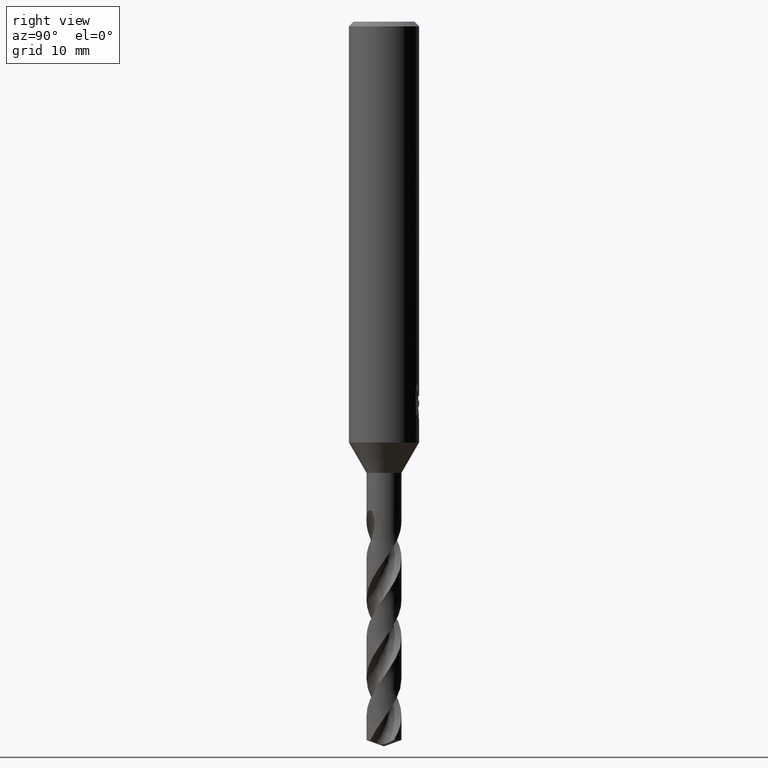
[diagram: clean part render]
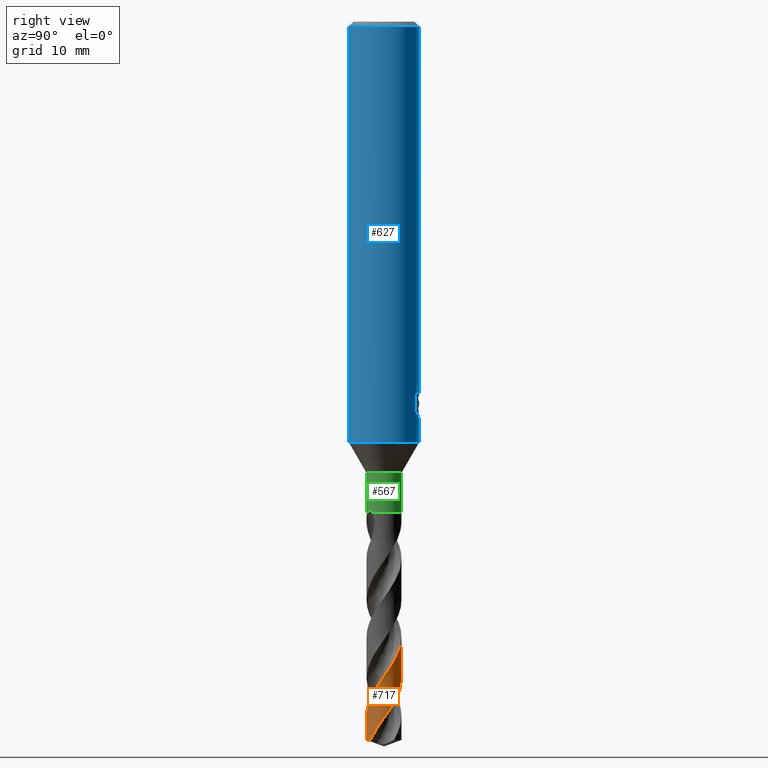
[diagram: same view with three faces highlighted in distinct colors, each labeled with its STEP entity id]
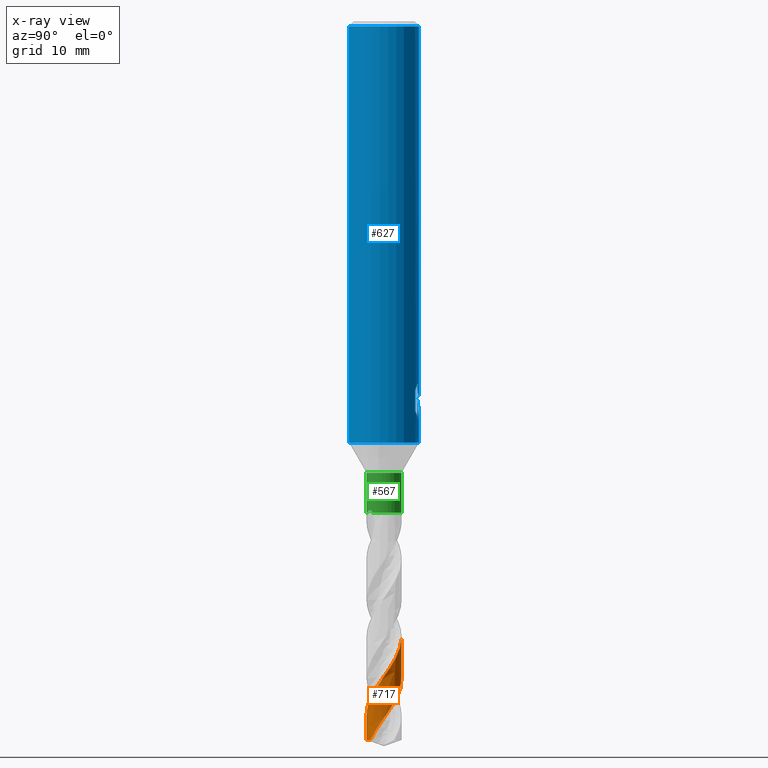
[diagram: x-ray of the same camera — body ghosted, the three highlighted faces saturated]
A machine part, right view with three faces highlighted in distinct colors.
The next image is the same camera in x-ray (body ghosted, the three faces saturated) — at least one of them is partly hidden behind the body in this view.
Their STEP definitions:

[orange] entity #717 — the highlighted conical surface has half-angle 0 deg.
#289=VERTEX_POINT('',#798);
#389=VERTEX_POINT('',#905);
#405=VERTEX_POINT('',#921);
#425=VERTEX_POINT('',#943);
#483=EDGE_CURVE('',#699,#289,#1010,.T.);
#557=EDGE_CURVE('',#425,#405,#1092,.T.);
#593=EDGE_CURVE('',#425,#389,#1130,.T.);
#595=EDGE_CURVE('',#699,#405,#1132,.T.);
#697=EDGE_CURVE('',#389,#289,#1244,.T.);
#699=VERTEX_POINT('',#1246);
#717=ADVANCED_FACE('',(#1265),#1266,.T.);
#798=CARTESIAN_POINT('',(-9.09574334832199E-012,-1.4999893762886,-59.3873030887682));
#905=CARTESIAN_POINT('',(1.83696954961922E-016,-1.5,-61.4540446486007));
#921=CARTESIAN_POINT('',(8.52531076527414E-012,1.49997300106852,-56.2016604643893));
#943=CARTESIAN_POINT('',(0.955970928159851,-1.15590639089556,-61.4540446486007));
#1010=B_SPLINE_CURVE_WITH_KNOTS('',3,(#3201,#3202,#3203,#3204,#3205,#3206,#3207,#3208,#3209,#3210,#3211,#3212,#3213,#3214,#3215,#3216,#3217,#3218,#3219,#3220,#3221,#3222,#3223,#3224,#3225,#3226,#3227,#3228,#3229,#3230,#3231,#3232,#3233,#3234,#3235,#3236,#3237,#3238,#3239,#3240,#3241,#3242,#3243,#3244,#3245,#3246,#3247,#3248,#3249,#3250,#3251,#3252,#3253,#3254,#3255,#3256,#3257,#3258,#3259,#3260,#3261,#3262,#3263,#3264,#3265,#3266,#3267,#3268,#3269,#3270,#3271,#3272,#3273,#3274,#3275,#3276,#3277,#3278,#3279,#3280,#3281,#3282,#3283,#3284,#3285,#3286,#3287,#3288,#3289,#3290,#3291,#3292,#3293,#3294,#3295,#3296,#3297,#3298,#3299,#3300),.UNSPECIFIED.,.F.,.F.,(4,2,2,2,2,2,2,2,2,2,2,2,2,2,2,2,2,2,2,2,2,2,2,2,2,2,2,2,2,2,2,2,2,2,2,2,2,2,2,2,2,2,2,2,2,2,2,2,2,4),(0.0,0.0494770349024312,0.0874460724039117,0.101018923007453,0.118882330418932,0.263554123507688,0.312997574476619,0.354081651349707,0.423768533427,0.508155185945295,0.672210713903487,0.699854159062458,0.818234451711137,0.894586122439807,0.967333661050095,1.00500013145378,1.11817492508677,1.34546461604303,1.45576750765601,1.79219487180401,2.69820480304552,2.83786086304867,3.60133049767861,4.49823561342111,5.12886428074419,5.78024308772815,6.76779369941567,6.9704344308379,7.66156994148285,8.56895041321238,9.61872501024354,9.71121369697719,10.3869950290038,10.8402021433472,11.2723035119934,12.123545721467,12.6301595036068,13.5289355353771,14.0091781563316,14.9125320830876,15.3859589385816,16.2893795474418,16.7628541366356,17.66703717944,18.1369888293891,19.0418781370671,19.5200614635924,20.370272897072,20.8543308610321,21.3435466858628),.UNSPECIFIED.);
#1092=B_SPLINE_CURVE_WITH_KNOTS('',3,(#3559,#3560,#3561,#3562,#3563,#3564,#3565,#3566,#3567,#3568,#3569,#3570,#3571,#3572,#3573,#3574,#3575,#3576,#3577,#3578,#3579,#3580,#3581,#3582,#3583,#3584,#3585,#3586,#3587,#3588,#3589,#3590,#3591,#3592,#3593,#3594,#3595,#3596,#3597,#3598,#3599,#3600,#3601,#3602,#3603,#3604,#3605,#3606,#3607,#3608,#3609,#3610,#3611,#3612,#3613,#3614,#3615,#3616,#3617,#3618,#3619,#3620,#3621,#3622,#3623,#3624,#3625,#3626,#3627,#3628,#3629,#3630,#3631,#3632,#3633,#3634,#3635,#3636,#3637,#3638,#3639,#3640),.UNSPECIFIED.,.F.,.F.,(4,2,2,2,2,2,2,2,2,2,2,2,2,2,2,2,2,2,2,2,2,2,2,2,2,2,2,2,2,2,2,2,2,2,2,2,2,2,2,2,4),(0.0,1.20410374957684,1.64390835440443,2.51108941524808,3.2178345579094,3.50521719873214,4.60674178259784,4.90657849424179,6.08062694376448,6.22352512300384,7.28972884179551,7.81269005957791,8.36029403080159,9.23943846758327,9.73087689209917,10.6096483401734,11.1551090775956,12.0292702690483,12.5615361503463,13.4314288877264,13.8740677899995,14.7487859791983,15.277086154792,16.148488729927,16.6973625843419,17.2800427700184,17.9246501023505,18.6835513333995,18.9654417606361,19.1740437003243,20.0711352347055,20.1043609643397,20.2182143856412,20.3381639072584,20.4871934528864,20.6772693627819,20.8304226633557,20.9497845038939,21.0494683050454,21.2672576027525,21.4730540881757),.UNSPECIFIED.);
#1130=CIRCLE('',#3937,1.5);
#1132=LINE('',#3940,#3941);
#1244=LINE('',#4569,#4570);
#1246=CARTESIAN_POINT('',(-4.24906613752697E-016,1.49995477359338,-52.6556793123933));
#1265=FACE_OUTER_BOUND('',#4688,.T.);
#1266=CONICAL_SURFACE('',#4689,1.49995,5.14031923979886E-006);
#3201=CARTESIAN_POINT('',(1.04255355615397,-1.07833999378087,-44.273));
#3202=CARTESIAN_POINT('',(1.03606573374677,-1.08461260612315,-44.2868043448719));
#3203=CARTESIAN_POINT('',(1.02950796798161,-1.09083968984453,-44.3006126774366));
#3204=CARTESIAN_POINT('',(1.01777389002006,-1.10178069346257,-44.3249940987505));
#3205=CARTESIAN_POINT('',(1.0126363818001,-1.10650472873742,-44.3355618868523));
#3206=CARTESIAN_POINT('',(1.00558714879179,-1.11289577679425,-44.3498993915925));
#3207=CARTESIAN_POINT('',(1.00372463753144,-1.11457591282852,-44.3536724463915));
#3208=CARTESIAN_POINT('',(0.999394886781406,-1.11846199228523,-44.3624075678866));
#3209=CARTESIAN_POINT('',(0.996923713919423,-1.12066526225347,-44.3673662165271));
#3210=CARTESIAN_POINT('',(0.974325767580558,-1.1406789363982,-44.4124595238539));
#3211=CARTESIAN_POINT('',(0.953831149449408,-1.15788928754099,-44.4515256414355));
#3212=CARTESIAN_POINT('',(0.924783147065266,-1.18093351052848,-44.5045061164744));
#3213=CARTESIAN_POINT('',(0.917308502460519,-1.18674958358617,-44.5179444756031));
#3214=CARTESIAN_POINT('',(0.903450611594648,-1.19732150271475,-44.5425446901982));
#3215=CARTESIAN_POINT('',(0.897128527026554,-1.20206507076615,-44.5536452462669));
#3216=CARTESIAN_POINT('',(0.880237210018076,-1.21453561759751,-44.5831143917903));
#3217=CARTESIAN_POINT('',(0.869497120723639,-1.22224795164404,-44.6016292567868));
#3218=CARTESIAN_POINT('',(0.845504201020266,-1.23899970595347,-44.6425745022574));
#3219=CARTESIAN_POINT('',(0.832218601436908,-1.24796236371639,-44.6649739357423));
#3220=CARTESIAN_POINT('',(0.792692851002979,-1.27371526736438,-44.7310010760259));
#3221=CARTESIAN_POINT('',(0.766184288417961,-1.28982860081588,-44.7745059236035));
#3222=CARTESIAN_POINT('',(0.734792027090465,-1.3076128357369,-44.8256922242331));
#3223=CARTESIAN_POINT('',(0.730271173621257,-1.31014298700379,-44.8330563171311));
#3224=CARTESIAN_POINT('',(0.706277683861821,-1.32340853097054,-44.8721034168947));
#3225=CARTESIAN_POINT('',(0.686640253898629,-1.33370097242916,-44.9039182924055));
#3226=CARTESIAN_POINT('',(0.654079540397022,-1.34986247044239,-44.9561919234405));
#3227=CARTESIAN_POINT('',(0.641225718704865,-1.35601567547581,-44.9767087942112));
#3228=CARTESIAN_POINT('',(0.615959870056631,-1.36767111380505,-45.0167477193551));
#3229=CARTESIAN_POINT('',(0.603545055622138,-1.37319524067443,-45.0362878837047));
#3230=CARTESIAN_POINT('',(0.584572908129828,-1.38132957337313,-45.0659166207867));
#3231=CARTESIAN_POINT('',(0.578076452250532,-1.38406098200973,-45.0760214681261));
#3232=CARTESIAN_POINT('',(0.551962875871798,-1.3948240530558,-45.1164682533854));
#3233=CARTESIAN_POINT('',(0.53215131316028,-1.40250345618407,-45.1467820589287));
#3234=CARTESIAN_POINT('',(0.472009372522794,-1.42435314526759,-45.2380681229455));
#3235=CARTESIAN_POINT('',(0.431257125642944,-1.43721695779063,-45.2988656523209));
#3236=CARTESIAN_POINT('',(0.369997791013945,-1.45371372066612,-45.3893890181469));
#3237=CARTESIAN_POINT('',(0.349880049479248,-1.45868626781746,-45.4189810139439));
#3238=CARTESIAN_POINT('',(0.268051119282854,-1.47712339768067,-45.5388072114766));
#3239=CARTESIAN_POINT('',(0.205618090344824,-1.48709980448049,-45.6290225386075));
#3240=CARTESIAN_POINT('',(-0.0265595947846581,-1.50929889111244,-45.962329908801));
#3241=CARTESIAN_POINT('',(-0.197438250971711,-1.49657606960804,-46.2034864218243));
#3242=CARTESIAN_POINT('',(-0.388012449105176,-1.44910438564129,-46.4839144250431));
#3243=CARTESIAN_POINT('',(-0.413278501046215,-1.44210178768294,-46.5213486945422));
#3244=CARTESIAN_POINT('',(-0.575372838881501,-1.39256947753921,-46.7637222573565));
#3245=CARTESIAN_POINT('',(-0.705848682352026,-1.33122410341164,-46.9682694885784));
#3246=CARTESIAN_POINT('',(-0.966459497493057,-1.15938524564785,-47.4136898536617));
#3247=CARTESIAN_POINT('',(-1.09041812681057,-1.04359027395579,-47.6519837853405));
#3248=CARTESIAN_POINT('',(-1.26422765015181,-0.815791180026627,-48.0622929150744));
#3249=CARTESIAN_POINT('',(-1.32470434631515,-0.713459564538578,-48.2310683349299));
#3250=CARTESIAN_POINT('',(-1.42195575813203,-0.492802631035801,-48.5749666887297));
#3251=CARTESIAN_POINT('',(-1.4573854606473,-0.375200792665966,-48.7486628623305));
#3252=CARTESIAN_POINT('',(-1.50962357018012,-0.0720884113372684,-49.1889263343112));
#3253=CARTESIAN_POINT('',(-1.50701508188578,0.115059816700769,-49.4516677737757));
#3254=CARTESIAN_POINT('',(-1.46265471870817,0.334536111270476,-49.7709506937224));
#3255=CARTESIAN_POINT('',(-1.45368745000206,0.371568621137509,-49.8252566500956));
#3256=CARTESIAN_POINT('',(-1.40798426228996,0.533168915499392,-50.0652785550703));
#3257=CARTESIAN_POINT('',(-1.35653398052238,0.653097255016228,-50.2508848299866));
#3258=CARTESIAN_POINT('',(-1.20323637532554,0.911687620753018,-50.6802231580419));
#3259=CARTESIAN_POINT('',(-1.09188368443056,1.04242953427554,-50.9210632179222));
#3260=CARTESIAN_POINT('',(-0.809722909761458,1.27790963036926,-51.4472024100297));
#3261=CARTESIAN_POINT('',(-0.634785952452101,1.3732866924254,-51.7259444512248));
#3262=CARTESIAN_POINT('',(-0.429579493997462,1.43722616540465,-52.0325821514063));
#3263=CARTESIAN_POINT('',(-0.412886424969269,1.44211036250252,-52.0574041552936));
#3264=CARTESIAN_POINT('',(-0.273565093495623,1.4802583076133,-52.2637871729339));
#3265=CARTESIAN_POINT('',(-0.147182577734481,1.49811834506386,-52.4454105650918));
#3266=CARTESIAN_POINT('',(0.0651750347776001,1.50096175566104,-52.7487982706819));
#3267=CARTESIAN_POINT('',(0.150416732200135,1.49483441706823,-52.8701837025465));
#3268=CARTESIAN_POINT('',(0.315120486529334,1.46873922920105,-53.1079129072487));
#3269=CARTESIAN_POINT('',(0.394223081866836,1.44950034308655,-53.223748528281));
#3270=CARTESIAN_POINT('',(0.623114832605215,1.37374728117653,-53.5688622044626));
#3271=CARTESIAN_POINT('',(0.76615581255165,1.29946324844169,-53.7964482603202));
#3272=CARTESIAN_POINT('',(0.971455696832948,1.14685243372558,-54.1611339636469));
#3273=CARTESIAN_POINT('',(1.0423366615749,1.0828152733479,-54.2967244077732));
#3274=CARTESIAN_POINT('',(1.22063736858032,0.887958821877349,-54.6747515934673));
#3275=CARTESIAN_POINT('',(1.31296883063406,0.744781835291719,-54.9149547532758));
#3276=CARTESIAN_POINT('',(1.41502013304989,0.5057801360444,-55.2854269361871));
#3277=CARTESIAN_POINT('',(1.44290494456311,0.419621655268099,-55.4140687462774));
#3278=CARTESIAN_POINT('',(1.50040227423725,0.165961719235151,-55.7863344913656));
#3279=CARTESIAN_POINT('',(1.50959837650197,-0.0050839643336143,-56.0277817553793));
#3280=CARTESIAN_POINT('',(1.47945726926305,-0.262854277792496,-56.397745362634));
#3281=CARTESIAN_POINT('',(1.46121995604058,-0.35026366850821,-56.5246103437458));
#3282=CARTESIAN_POINT('',(1.3860646725342,-0.598005658107159,-56.8951551246021));
#3283=CARTESIAN_POINT('',(1.30941446588155,-0.751253769815928,-57.1366824751843));
#3284=CARTESIAN_POINT('',(1.1556388149613,-0.960420564847179,-57.5067735423378));
#3285=CARTESIAN_POINT('',(1.09652116878972,-1.02738133233801,-57.6336879112863));
#3286=CARTESIAN_POINT('',(0.908469343391176,-1.20563254558577,-58.004542812784));
#3287=CARTESIAN_POINT('',(0.765854910028339,-1.3009601478975,-58.2463141822991));
#3288=CARTESIAN_POINT('',(0.529095497253777,-1.40636769091543,-58.6157455274818));
#3289=CARTESIAN_POINT('',(0.445207398490434,-1.4351183798871,-58.7417420883373));
#3290=CARTESIAN_POINT('',(0.194099475803561,-1.49708654765588,-59.1119360338111));
#3291=CARTESIAN_POINT('',(0.0228345869721701,-1.50949717769371,-59.3539981753925));
#3292=CARTESIAN_POINT('',(-0.236801310836639,-1.48392542841914,-59.7259536098301));
#3293=CARTESIAN_POINT('',(-0.325471195585092,-1.46701812130213,-59.854221884222));
#3294=CARTESIAN_POINT('',(-0.565851265841746,-1.3983541849601,-60.2119578201153));
#3295=CARTESIAN_POINT('',(-0.711909359398207,-1.33000471677618,-60.4395157837928));
#3296=CARTESIAN_POINT('',(-0.920006628316629,-1.18824333708166,-60.7983616884545));
#3297=CARTESIAN_POINT('',(-0.990505974531737,-1.13012614474301,-60.9280266490972));
#3298=CARTESIAN_POINT('',(-1.12065629946751,-1.00129836432119,-61.1903306241461));
#3299=CARTESIAN_POINT('',(-1.18000793767298,-0.930626448656975,-61.3222162586166));
#3300=CARTESIAN_POINT('',(-1.23251357404472,-0.8549329153773,-61.4540446486007));
#3559=CARTESIAN_POINT('',(0.955970928159858,-1.15590639089555,-61.4540446486007));
#3560=CARTESIAN_POINT('',(1.13434228225584,-1.00838548563016,-61.1261461170947));
#3561=CARTESIAN_POINT('',(1.27580064295621,-0.821947378378693,-60.7956379731833));
#3562=CARTESIAN_POINT('',(1.40419131635194,-0.534169576059815,-60.346863537792));
#3563=CARTESIAN_POINT('',(1.43199268586925,-0.454412018523667,-60.227518388901));
#3564=CARTESIAN_POINT('',(1.49426554298271,-0.211652609583752,-59.8708478895304));
#3565=CARTESIAN_POINT('',(1.50850026079724,-0.0450886758047098,-59.6319156978935));
#3566=CARTESIAN_POINT('',(1.48423833610688,0.255649622257659,-59.2023576668012));
#3567=CARTESIAN_POINT('',(1.45511877912252,0.388309578685045,-59.0121178487377));
#3568=CARTESIAN_POINT('',(1.3899787315027,0.566502754472807,-58.740299462178));
#3569=CARTESIAN_POINT('',(1.36841439629919,0.616744911969606,-58.661303672898));
#3570=CARTESIAN_POINT('',(1.25142969405804,0.852986950628531,-58.2821850585079));
#3571=CARTESIAN_POINT('',(1.12061205276445,1.01877537814973,-57.9917587684018));
#3572=CARTESIAN_POINT('',(0.916188613824998,1.1890244412814,-57.6103260756404));
#3573=CARTESIAN_POINT('',(0.870570094599348,1.22281326259888,-57.5282710661224));
#3574=CARTESIAN_POINT('',(0.637193879510072,1.37599598018234,-57.1272917714315));
#3575=CARTESIAN_POINT('',(0.426977291954523,1.45489249931395,-56.8200269229101));
#3576=CARTESIAN_POINT('',(0.180829367100363,1.48927869826162,-56.4620009561243));
#3577=CARTESIAN_POINT('',(0.154052720072316,1.49228816614962,-56.4230691165949));
#3578=CARTESIAN_POINT('',(-0.0743280491846724,1.51170218052718,-56.0932268729777));
#3579=CARTESIAN_POINT('',(-0.277142174069716,1.48799351676023,-55.8116263011499));
#3580=CARTESIAN_POINT('',(-0.563845639604201,1.39350381212063,-55.3797445121049));
#3581=CARTESIAN_POINT('',(-0.65478077180699,1.35316753393725,-55.2362636161388));
#3582=CARTESIAN_POINT('',(-0.831820977796934,1.25252713398174,-54.9451942611514));
#3583=CARTESIAN_POINT('',(-0.91691183415787,1.19167805836288,-54.7976696642488));
#3584=CARTESIAN_POINT('',(-1.12069043529983,1.0109929696541,-54.4106088315659));
#3585=CARTESIAN_POINT('',(-1.22641283995926,0.879658124568795,-54.1698193579653));
#3586=CARTESIAN_POINT('',(-1.35401511410087,0.652130433353624,-53.7976001184705));
#3587=CARTESIAN_POINT('',(-1.39208653225525,0.566361588794893,-53.6651226575598));
#3588=CARTESIAN_POINT('',(-1.47529957111251,0.318548386872318,-53.293556623052));
#3589=CARTESIAN_POINT('',(-1.50155684167835,0.152172118580678,-53.0529204333856));
#3590=CARTESIAN_POINT('',(-1.4988396568576,-0.118811295068362,-52.6663284879638));
#3591=CARTESIAN_POINT('',(-1.48703154160454,-0.222273313194459,-52.5195890983041));
#3592=CARTESIAN_POINT('',(-1.42863044267469,-0.486441233917437,-52.134700407094));
#3593=CARTESIAN_POINT('',(-1.3659421499386,-0.641675982164567,-51.8952600023307));
#3594=CARTESIAN_POINT('',(-1.22607243800208,-0.86997716351415,-51.5138123691022));
#3595=CARTESIAN_POINT('',(-1.16452150860661,-0.950791691578031,-51.3706547582955));
#3596=CARTESIAN_POINT('',(-0.982118480007173,-1.14573772441324,-50.9905143320427));
#3597=CARTESIAN_POINT('',(-0.849910622295591,-1.24696704248305,-50.7522848165051));
#3598=CARTESIAN_POINT('',(-0.629176098824655,-1.36421101575247,-50.3964741110058));
#3599=CARTESIAN_POINT('',(-0.551526606524811,-1.39741042854755,-50.2771786510697));
#3600=CARTESIAN_POINT('',(-0.313297471662782,-1.47628989742545,-49.9201888493309));
#3601=CARTESIAN_POINT('',(-0.147825850555938,-1.50188637734202,-49.6807070954907));
#3602=CARTESIAN_POINT('',(0.119091023175143,-1.49857698713896,-49.300351555786));
#3603=CARTESIAN_POINT('',(0.219224827815979,-1.48723262337767,-49.1583034732488));
#3604=CARTESIAN_POINT('',(0.479585951343527,-1.43084166718961,-48.7790270959858));
#3605=CARTESIAN_POINT('',(0.634510159796443,-1.3691999141514,-48.5405319156185));
#3606=CARTESIAN_POINT('',(0.865808966074243,-1.22926172540779,-48.1557066870893));
#3607=CARTESIAN_POINT('',(0.949250216948421,-1.16601990955765,-48.0082586648169));
#3608=CARTESIAN_POINT('',(1.10623234062516,-1.01897297922785,-47.7015481465908));
#3609=CARTESIAN_POINT('',(1.17815053055997,-0.93482534243717,-47.5419952691203));
#3610=CARTESIAN_POINT('',(1.30874868036255,-0.742851976327342,-47.2093718929604));
#3611=CARTESIAN_POINT('',(1.36495599555225,-0.63380073429603,-47.0367958350188));
#3612=CARTESIAN_POINT('',(1.45727731044252,-0.383337760527558,-46.6577047661374));
#3613=CARTESIAN_POINT('',(1.4872458644329,-0.241819974501129,-46.4515710630476));
#3614=CARTESIAN_POINT('',(1.50018321628084,-0.0453654034514287,-46.1699340081641));
#3615=CARTESIAN_POINT('',(1.50084834609306,0.00800624017595967,-46.0938289805887));
#3616=CARTESIAN_POINT('',(1.49705248811376,0.100766305822097,-45.9611472551397));
#3617=CARTESIAN_POINT('',(1.4938815800622,0.140134929686422,-45.9046566958611));
#3618=CARTESIAN_POINT('',(1.4688497371757,0.347969167271678,-45.6055656562703));
#3619=CARTESIAN_POINT('',(1.41975337992112,0.513737534312843,-45.3573804816908));
#3620=CARTESIAN_POINT('',(1.33986944607199,0.67419493257551,-45.109578167542));
#3621=CARTESIAN_POINT('',(1.33711491264655,0.679641345165246,-45.1011750513204));
#3622=CARTESIAN_POINT('',(1.3241927513307,0.704797889082417,-45.062034801765));
#3623=CARTESIAN_POINT('',(1.31386880964708,0.723846178821415,-45.0316418241854));
#3624=CARTESIAN_POINT('',(1.29212020078229,0.762023156466298,-44.9687312863007));
#3625=CARTESIAN_POINT('',(1.28069841250905,0.781044546325215,-44.9362804916174));
#3626=CARTESIAN_POINT('',(1.2546838676596,0.822340441255523,-44.8627483989));
#3627=CARTESIAN_POINT('',(1.24407971657544,0.838058687961337,-44.8324794635782));
#3628=CARTESIAN_POINT('',(1.22046301266614,0.872212382353362,-44.7672560124904));
#3629=CARTESIAN_POINT('',(1.20662410590512,0.891277774526639,-44.7309494679348));
#3630=CARTESIAN_POINT('',(1.18032786324387,0.925711079117802,-44.665761593547));
#3631=CARTESIAN_POINT('',(1.16815326067779,0.941038691071554,-44.6368791045012));
#3632=CARTESIAN_POINT('',(1.14559934471235,0.96828821290288,-44.5857859167917));
#3633=CARTESIAN_POINT('',(1.13379575075432,0.982088074733413,-44.5598240035916));
#3634=CARTESIAN_POINT('',(1.11455584122613,1.00383201929504,-44.519875912167));
#3635=CARTESIAN_POINT('',(1.10544980589952,1.01385993447016,-44.5019600475839));
#3636=CARTESIAN_POINT('',(1.07527083322912,1.04615961687947,-44.4456688513501));
#3637=CARTESIAN_POINT('',(1.05291430617327,1.06874264497897,-44.4084115329009));
#3638=CARTESIAN_POINT('',(1.005924197376,1.11303043666649,-44.3380636850003));
#3639=CARTESIAN_POINT('',(0.981630362475983,1.13457520611436,-44.3050761811192));
#3640=CARTESIAN_POINT('',(0.955798347631239,1.15593450433059,-44.273));
#3937=AXIS2_PLACEMENT_3D('',#5649,#5650,#5651);
#3940=CARTESIAN_POINT('',(-1.83678828153022E-016,1.49995,-51.7270223243004));
#3941=VECTOR('',#5652,1.0);
#4569=CARTESIAN_POINT('',(1.83690831930153E-016,-1.49995,-51.7270223243004));
#4570=VECTOR('',#5796,1.0);
#4688=EDGE_LOOP('',(#5822,#5823,#5824,#5825,#5826));
#4689=AXIS2_PLACEMENT_3D('',#5827,#5828,#5829);
#5649=CARTESIAN_POINT('',(0.0,0.0,-61.4540446486007));
#5650=DIRECTION('',(0.0,0.0,-1.0));
#5651=DIRECTION('',(0.0,1.0,0.0));
#5652=DIRECTION('',(-6.29486760170538E-022,5.14031923977623E-006,-0.999999999986789));
#5796=DIRECTION('',(-6.29486760170538E-022,5.14031923977623E-006,0.999999999986789));
#5822=ORIENTED_EDGE('',*,*,#595,.F.);
#5823=ORIENTED_EDGE('',*,*,#483,.T.);
#5824=ORIENTED_EDGE('',*,*,#697,.F.);
#5825=ORIENTED_EDGE('',*,*,#593,.F.);
#5826=ORIENTED_EDGE('',*,*,#557,.T.);
#5827=CARTESIAN_POINT('',(0.0,0.0,-51.7270223243004));
#5828=DIRECTION('',(0.0,-0.0,-1.0));
#5829=DIRECTION('',(0.0,1.0,0.0));

[blue] entity #627 — the highlighted cylindrical surface (edge-blend (fillet) strip) has radius 3 mm, axis along (-0, -0, 1).
#285=EDGE_CURVE('',#695,#327,#793,.T.);
#291=VERTEX_POINT('',#800);
#305=EDGE_CURVE('',#409,#751,#814,.T.);
#311=VERTEX_POINT('',#820);
#327=VERTEX_POINT('',#838);
#353=EDGE_CURVE('',#589,#409,#865,.T.);
#381=VERTEX_POINT('',#897);
#409=VERTEX_POINT('',#926);
#471=EDGE_CURVE('',#381,#589,#996,.T.);
#477=VERTEX_POINT('',#1003);
#513=VERTEX_POINT('',#1042);
#529=EDGE_CURVE('',#311,#477,#1060,.T.);
#577=VERTEX_POINT('',#1114);
#589=VERTEX_POINT('',#1126);
#611=EDGE_CURVE('',#751,#311,#1150,.T.);
#623=EDGE_CURVE('',#679,#291,#1163,.T.);
#627=ADVANCED_FACE('',(#1168),#1169,.T.);
#631=EDGE_CURVE('',#679,#577,#1173,.T.);
#667=EDGE_CURVE('',#513,#327,#1211,.T.);
#679=VERTEX_POINT('',#1224);
#695=VERTEX_POINT('',#1242);
#733=EDGE_CURVE('',#291,#513,#1284,.T.);
#739=EDGE_CURVE('',#577,#381,#1291,.T.);
#751=VERTEX_POINT('',#1304);
#761=EDGE_CURVE('',#695,#477,#1314,.T.);
#793=CIRCLE('',#1353,3.0);
#800=CARTESIAN_POINT('',(0.0,3.0,-36.0));
#814=LINE('',#1459,#1460);
#820=CARTESIAN_POINT('',(0.799431726384364,2.89152363207533,-31.000000276873));
#838=CARTESIAN_POINT('',(3.67381906146713E-016,-3.0,-0.399999999999999));
#865=B_SPLINE_CURVE_WITH_KNOTS('',3,(#2120,#2121,#2122,#2123,#2124,#2125,#2126,#2127),.UNSPECIFIED.,.F.,.F.,(4,2,2,4),(8.17446522132897,8.48751487521068,8.80056452909238,9.43014514523744),.UNSPECIFIED.);
#897=CARTESIAN_POINT('',(0.873560781758957,2.86999852971612,-32.3198931596091));
#926=CARTESIAN_POINT('',(1.33721006514658,2.68549236485056,-33.2901657003257));
#996=LINE('',#3182,#3183);
#1003=CARTESIAN_POINT('',(-1.20768269592175E-015,3.0,-32.0232688117743));
#1042=CARTESIAN_POINT('',(3.67381906146713E-016,-3.0,-36.0));
#1060=B_SPLINE_CURVE_WITH_KNOTS('',3,(#3474,#3475,#3476,#3477,#3478,#3479,#3480,#3481,#3482,#3483,#3484,#3485,#3486,#3487,#3488,#3489,#3490,#3491,#3492,#3493,#3494,#3495,#3496,#3497,#3498,#3499,#3500),.UNSPECIFIED.,.F.,.F.,(4,2,3,2,2,2,2,2,2,2,2,2,4),(-0.54422824842136,-0.27211412421068,0.0,0.272114124210678,0.544228248421357,0.817906359646673,1.09158447087199,1.36255924571499,1.63353402055798,1.90530456554772,2.17707511053746,2.4488456555272,2.72061620051693),.UNSPECIFIED.);
#1114=CARTESIAN_POINT('',(0.29010312703583,2.98594041730307,-33.9998328990228));
#1126=CARTESIAN_POINT('',(0.873560781758956,2.86999852971612,-33.7587351791531));
#1150=B_SPLINE_CURVE_WITH_KNOTS('',3,(#4065,#4066,#4067,#4068,#4069,#4070,#4071,#4072),.UNSPECIFIED.,.F.,.F.,(4,2,2,4),(0.629580638580865,1.25916127716173,1.57221094126725,1.88526060537277),.UNSPECIFIED.);
#1163=LINE('',#4214,#4215);
#1168=FACE_OUTER_BOUND('',#4220,.T.);
#1169=CYLINDRICAL_SURFACE('',#4221,3.0);
#1173=B_SPLINE_CURVE_WITH_KNOTS('',3,(#4240,#4241,#4242,#4243,#4244,#4245,#4246,#4247,#4248,#4249,#4250,#4251,#4252,#4253,#4254,#4255),.UNSPECIFIED.,.F.,.F.,(4,2,2,2,2,2,2,4),(5.66023402257373,6.29060333517104,6.60504483258975,6.91948633000846,7.23392782742717,7.54836932484587,7.86141901111221,8.17446869737855),.UNSPECIFIED.);
#1211=LINE('',#4528,#4529);
#1224=CARTESIAN_POINT('',(-2.46407913303377E-016,3.0,-34.0310253601033));
#1242=CARTESIAN_POINT('',(0.0,3.0,-0.399999999999999));
#1284=CIRCLE('',#4998,3.0);
#1291=ELLIPSE('',#5231,9.14398372010932,3.0);
#1304=CARTESIAN_POINT('',(1.33721006514658,2.68549236485057,-31.5150484364821));
#1314=LINE('',#5275,#5276);
#1353=AXIS2_PLACEMENT_3D('',#5292,#5293,#5294);
#1459=CARTESIAN_POINT('',(1.33721006514658,2.68549236485056,-32.4026070684039));
#1460=VECTOR('',#5312,1.0);
#2120=CARTESIAN_POINT('',(0.600330703923335,2.93932016730517,-33.9050364278969));
#2121=CARTESIAN_POINT('',(0.700343038443484,2.91889351228921,-33.8631861412044));
#2122=CARTESIAN_POINT('',(0.795685584213131,2.8940165604303,-33.8114119954011));
#2123=CARTESIAN_POINT('',(0.971352589628262,2.83988055167306,-33.692706383359));
#2124=CARTESIAN_POINT('',(1.0516835476539,2.81066216129401,-33.6257659914415));
#2125=CARTESIAN_POINT('',(1.26543925920527,2.72440179743877,-33.4122346680481));
#2126=CARTESIAN_POINT('',(1.3899740959159,2.66030349847411,-33.2319488826214));
#2127=CARTESIAN_POINT('',(1.47371594109741,2.61307507066968,-33.0321377817991));
#3182=CARTESIAN_POINT('',(0.873560781758957,2.86999852971612,-33.0393141693811));
#3183=VECTOR('',#5497,1.0);
#3474=CARTESIAN_POINT('',(0.665621182276714,2.92522622060321,-30.8140957881762));
#3475=CARTESIAN_POINT('',(0.728850563417096,2.91083867849353,-30.877518087557));
#3476=CARTESIAN_POINT('',(0.783900459387161,2.89602337967411,-30.9578702196133));
#3477=CARTESIAN_POINT('',(0.857188692916628,2.87518328740958,-31.1345580124299));
#3478=CARTESIAN_POINT('',(0.875400981188567,2.86943777108584,-31.2309373045166));
#3479=CARTESIAN_POINT('',(0.875400981188567,2.86943777108584,-31.3216420125868));
#3480=CARTESIAN_POINT('',(0.875400981188567,2.86943777108584,-31.412346720657));
#3481=CARTESIAN_POINT('',(0.857188692916629,2.87518328740958,-31.5087260127437));
#3482=CARTESIAN_POINT('',(0.783900459387161,2.89602337967411,-31.6854138055602));
#3483=CARTESIAN_POINT('',(0.728850563417096,2.91083867849353,-31.7657659376165));
#3484=CARTESIAN_POINT('',(0.60202838769231,2.93969645569731,-31.8929750586276));
#3485=CARTESIAN_POINT('',(0.5214778595293,2.95568533572518,-31.9483797636259));
#3486=CARTESIAN_POINT('',(0.34429909105015,2.98152194310932,-32.0221641076746));
#3487=CARTESIAN_POINT('',(0.247628172090375,2.99115403786358,-32.0405166027747));
#3488=CARTESIAN_POINT('',(0.0663244946631877,3.00062654348629,-32.0405166027747));
#3489=CARTESIAN_POINT('',(-0.0299285908853379,3.00115720326599,-32.0224875186921));
#3490=CARTESIAN_POINT('',(-0.206881310600538,2.99416773126077,-31.949244373347));
#3491=CARTESIAN_POINT('',(-0.287593937381961,2.98687212067831,-31.8940404490632));
#3492=CARTESIAN_POINT('',(-0.415200117492864,2.97182576996222,-31.7666805419979));
#3493=CARTESIAN_POINT('',(-0.470604049431396,2.96309385107775,-31.6859121102136));
#3494=CARTESIAN_POINT('',(-0.544183869965539,2.95046729924835,-31.5086992019516));
#3495=CARTESIAN_POINT('',(-0.562348199187247,2.94682278104247,-31.41223219425));
#3496=CARTESIAN_POINT('',(-0.562348199187247,2.94682278104247,-31.2310518309235));
#3497=CARTESIAN_POINT('',(-0.54418386996554,2.95046729924835,-31.134584823222));
#3498=CARTESIAN_POINT('',(-0.4706040494314,2.96309385107775,-30.95737191496));
#3499=CARTESIAN_POINT('',(-0.415200117492863,2.97182576996222,-30.8766034831756));
#3500=CARTESIAN_POINT('',(-0.351303479704285,2.97935997575782,-30.812830162452));
#4065=CARTESIAN_POINT('',(1.47371594887933,2.61307506628086,-31.7730763684241));
#4066=CARTESIAN_POINT('',(1.38997410067862,2.66030349611674,-31.5732652606136));
#4067=CARTESIAN_POINT('',(1.2654392594963,2.72440179761724,-31.3929794688919));
#4068=CARTESIAN_POINT('',(1.05168354029617,2.81066216411606,-31.1794481382038));
#4069=CARTESIAN_POINT('',(0.971352579549231,2.83988055521709,-31.1125077441098));
#4070=CARTESIAN_POINT('',(0.795685568183073,2.89401656493242,-30.9938021282019));
#4071=CARTESIAN_POINT('',(0.700343019183212,2.91889351702519,-30.9420279807093));
#4072=CARTESIAN_POINT('',(0.600330681290245,2.93932017192779,-30.9001776926585));
#4214=CARTESIAN_POINT('',(-3.67381906146713E-016,3.0,-18.2));
#4215=VECTOR('',#5683,1.0);
#4220=EDGE_LOOP('',(#5697,#5698,#5699,#5700,#5701,#5702,#5703,#5704,#5705,#5706,#5707,#5708));
#4221=AXIS2_PLACEMENT_3D('',#5709,#5710,#5711);
#4240=CARTESIAN_POINT('',(-1.53050642192579,2.58022287650581,-33.0319811255889));
#4241=CARTESIAN_POINT('',(-1.44691631248335,2.62980577312329,-33.2314887010961));
#4242=CARTESIAN_POINT('',(-1.32276760444366,2.69707077181617,-33.4113258593841));
#4243=CARTESIAN_POINT('',(-1.10973155101076,2.78826898930335,-33.6245951706909));
#4244=CARTESIAN_POINT('',(-1.02948996220254,2.81934349084513,-33.6916117853674));
#4245=CARTESIAN_POINT('',(-0.853932698223484,2.87738531454781,-33.8105216600777));
#4246=CARTESIAN_POINT('',(-0.758609991487907,2.90431263574779,-33.8624240602539));
#4247=CARTESIAN_POINT('',(-0.558469552260235,2.94934446690523,-33.9464055954533));
#4248=CARTESIAN_POINT('',(-0.453457041446381,2.96746268462387,-33.9785511641911));
#4249=CARTESIAN_POINT('',(-0.240810292537893,2.99223469602914,-34.0209924679526));
#4250=CARTESIAN_POINT('',(-0.133171317626829,2.99887501234033,-34.0312723335086));
#4251=CARTESIAN_POINT('',(0.0759830626177195,3.00085245803086,-34.0312723335086));
#4252=CARTESIAN_POINT('',(0.183273473896684,2.99629272230549,-34.0210815541729));
#4253=CARTESIAN_POINT('',(0.39543915272815,2.97573303917486,-33.9788816901513));
#4254=CARTESIAN_POINT('',(0.500318639064909,2.95974677710468,-33.9468871509919));
#4255=CARTESIAN_POINT('',(0.600330982089903,2.93932011049205,-33.9050368602192));
#4528=CARTESIAN_POINT('',(3.67381906146713E-016,-3.0,-18.2));
#4529=VECTOR('',#5754,1.0);
#4998=AXIS2_PLACEMENT_3D('',#5848,#5849,#5850);
#5231=AXIS2_PLACEMENT_3D('',#5860,#5861,#5862);
#5275=CARTESIAN_POINT('',(-3.67381906146713E-016,3.0,-18.2));
#5276=VECTOR('',#5879,1.0);
#5292=CARTESIAN_POINT('',(0.0,0.0,-0.399999999999999));
#5293=DIRECTION('',(0.0,0.0,-1.0));
#5294=DIRECTION('',(0.0,1.0,0.0));
#5312=DIRECTION('',(-0.0,-0.0,1.0));
#5497=DIRECTION('',(0.0,0.0,-1.0));
#5683=DIRECTION('',(0.0,0.0,-1.0));
#5697=ORIENTED_EDGE('',*,*,#761,.F.);
#5698=ORIENTED_EDGE('',*,*,#285,.T.);
#5699=ORIENTED_EDGE('',*,*,#667,.F.);
#5700=ORIENTED_EDGE('',*,*,#733,.F.);
#5701=ORIENTED_EDGE('',*,*,#623,.F.);
#5702=ORIENTED_EDGE('',*,*,#631,.T.);
#5703=ORIENTED_EDGE('',*,*,#739,.T.);
#5704=ORIENTED_EDGE('',*,*,#471,.T.);
#5705=ORIENTED_EDGE('',*,*,#353,.T.);
#5706=ORIENTED_EDGE('',*,*,#305,.T.);
#5707=ORIENTED_EDGE('',*,*,#611,.T.);
#5708=ORIENTED_EDGE('',*,*,#529,.T.);
#5709=CARTESIAN_POINT('',(0.0,0.0,-18.2));
#5710=DIRECTION('',(-0.0,-0.0,1.0));
#5711=DIRECTION('',(0.0,1.0,0.0));
#5754=DIRECTION('',(-0.0,-0.0,1.0));
#5848=CARTESIAN_POINT('',(0.0,0.0,-36.0));
#5849=DIRECTION('',(0.0,0.0,-1.0));
#5850=DIRECTION('',(0.0,1.0,0.0));
#5860=CARTESIAN_POINT('',(0.0,0.0,-34.8351219173269));
#5861=DIRECTION('',(0.944648353914092,0.0,-0.328084573619969));
#5862=DIRECTION('',(0.328084573619969,-0.0,0.944648353914092));
#5879=DIRECTION('',(0.0,0.0,-1.0));

[green] entity #567 — the highlighted cylindrical surface (edge-blend (fillet) strip) has radius 1.5 mm, axis along (-0, -0, 1).
#315=EDGE_CURVE('',#635,#401,#824,.T.);
#337=EDGE_CURVE('',#545,#509,#848,.T.);
#339=VERTEX_POINT('',#850);
#365=EDGE_CURVE('',#509,#401,#878,.T.);
#401=VERTEX_POINT('',#917);
#481=EDGE_CURVE('',#339,#571,#1008,.T.);
#509=VERTEX_POINT('',#1038);
#545=VERTEX_POINT('',#1078);
#567=ADVANCED_FACE('',(#1102),#1103,.T.);
#571=VERTEX_POINT('',#1108);
#601=EDGE_CURVE('',#635,#339,#1138,.T.);
#619=EDGE_CURVE('',#545,#571,#1158,.T.);
#635=VERTEX_POINT('',#1177);
#824=CIRCLE('',#1527,1.5);
#848=CIRCLE('',#2070,1.5);
#850=CARTESIAN_POINT('',(-1.83690953073357E-016,1.5,-42.0));
#878=LINE('',#2150,#2151);
#917=CARTESIAN_POINT('',(1.83690953073357E-016,-1.5,-38.5980762113533));
#1008=CIRCLE('',#3198,1.5);
#1038=CARTESIAN_POINT('',(1.83690953073357E-016,-1.5,-42.0));
#1078=CARTESIAN_POINT('',(0.51456019250681,-1.4089811241771,-42.0));
#1102=FACE_OUTER_BOUND('',#3651,.T.);
#1103=CYLINDRICAL_SURFACE('',#3652,1.5);
#1108=CARTESIAN_POINT('',(1.13485556220612,-0.98086841774513,-42.0));
#1138=LINE('',#3950,#3951);
#1158=B_SPLINE_CURVE_WITH_KNOTS('',3,(#4197,#4198,#4199,#4200,#4201,#4202,#4203,#4204,#4205,#4206,#4207,#4208),.UNSPECIFIED.,.F.,.F.,(4,2,2,2,2,4),(0.0,0.281659851821722,0.453180823093604,0.594484397031894,0.735156084581647,0.88582254214661),.UNSPECIFIED.);
#1177=CARTESIAN_POINT('',(0.0,1.5,-38.5980762113533));
#1527=AXIS2_PLACEMENT_3D('',#5313,#5314,#5315);
#2070=AXIS2_PLACEMENT_3D('',#5345,#5346,#5347);
#2150=CARTESIAN_POINT('',(1.83690953073357E-016,-1.5,-40.2990381056767));
#2151=VECTOR('',#5369,1.0);
#3198=AXIS2_PLACEMENT_3D('',#5516,#5517,#5518);
#3651=EDGE_LOOP('',(#5631,#5632,#5633,#5634,#5635,#5636));
#3652=AXIS2_PLACEMENT_3D('',#5637,#5638,#5639);
#3950=CARTESIAN_POINT('',(-1.83690953073357E-016,1.5,-40.2990381056767));
#3951=VECTOR('',#5654,1.0);
#4197=CARTESIAN_POINT('',(0.514560192506813,-1.40898112417709,-42.0));
#4198=CARTESIAN_POINT('',(0.579635231706975,-1.385215706654,-41.9366348589034));
#4199=CARTESIAN_POINT('',(0.652409133222293,-1.3534321837966,-41.8773980540663));
#4200=CARTESIAN_POINT('',(0.773571941158451,-1.28621021592794,-41.8177231366867));
#4201=CARTESIAN_POINT('',(0.820474518821933,-1.25700876675765,-41.8033172924098));
#4202=CARTESIAN_POINT('',(0.905314765379171,-1.19691710834464,-41.8002703172284));
#4203=CARTESIAN_POINT('',(0.941340000983583,-1.16868709607437,-41.8076318594795));
#4204=CARTESIAN_POINT('',(1.00831932718395,-1.11140688073768,-41.83952604845));
#4205=CARTESIAN_POINT('',(1.03773202982949,-1.08372487990739,-41.8632283620581));
#4206=CARTESIAN_POINT('',(1.09133710327234,-1.02981987435125,-41.9233100634398));
#4207=CARTESIAN_POINT('',(1.11483767753889,-1.00402892260716,-41.960258057704));
#4208=CARTESIAN_POINT('',(1.13485556220611,-0.980868417745131,-42.0));
#5313=CARTESIAN_POINT('',(0.0,0.0,-38.5980762113533));
#5314=DIRECTION('',(0.0,0.0,-1.0));
#5315=DIRECTION('',(0.0,1.0,0.0));
#5345=CARTESIAN_POINT('',(0.0,0.0,-42.0));
#5346=DIRECTION('',(0.0,0.0,-1.0));
#5347=DIRECTION('',(0.0,1.0,0.0));
#5369=DIRECTION('',(-0.0,-0.0,1.0));
#5516=CARTESIAN_POINT('',(0.0,0.0,-42.0));
#5517=DIRECTION('',(0.0,0.0,-1.0));
#5518=DIRECTION('',(0.0,1.0,0.0));
#5631=ORIENTED_EDGE('',*,*,#601,.F.);
#5632=ORIENTED_EDGE('',*,*,#315,.T.);
#5633=ORIENTED_EDGE('',*,*,#365,.F.);
#5634=ORIENTED_EDGE('',*,*,#337,.F.);
#5635=ORIENTED_EDGE('',*,*,#619,.T.);
#5636=ORIENTED_EDGE('',*,*,#481,.F.);
#5637=CARTESIAN_POINT('',(0.0,0.0,-40.2990381056767));
#5638=DIRECTION('',(-0.0,-0.0,1.0));
#5639=DIRECTION('',(0.0,1.0,0.0));
#5654=DIRECTION('',(0.0,0.0,-1.0));